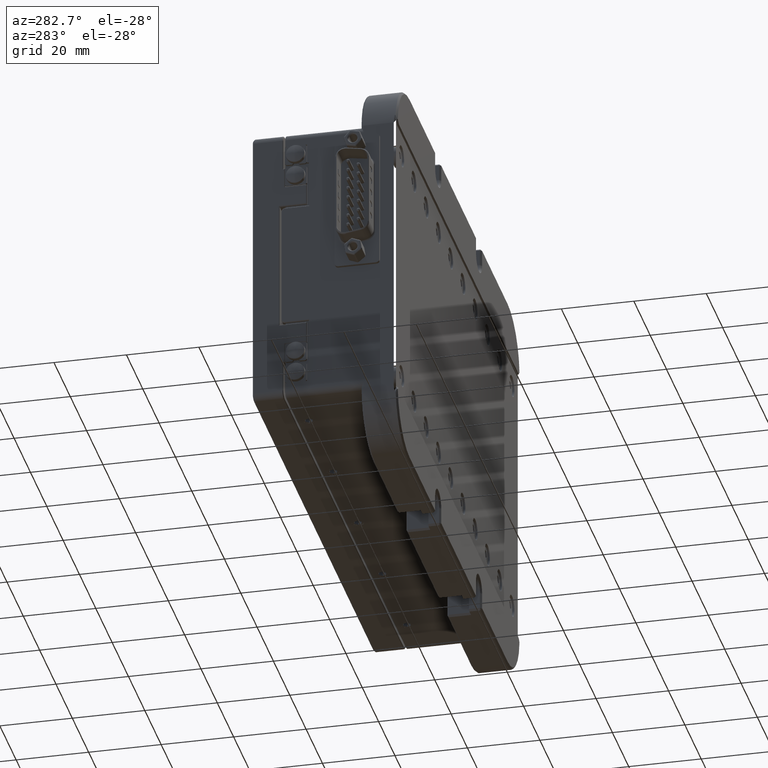
[diagram: clean part render]
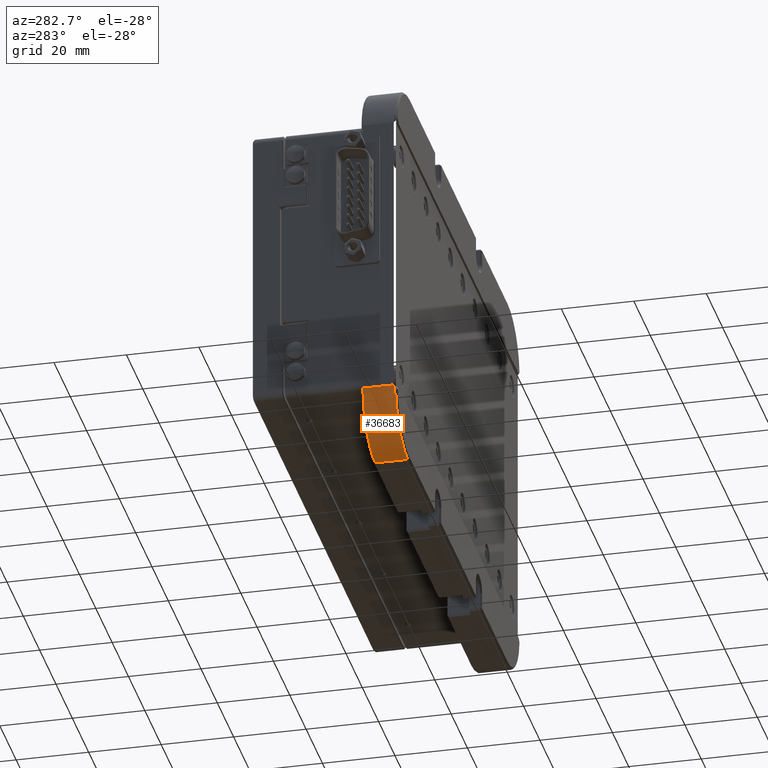
[diagram: same view with one face highlighted and labeled with its STEP entity id]
A machine part, auxiliary view. The second image highlights one B-rep face of the part: STEP entity #36683.
In plain terms, the highlighted cylindrical surface (partial cylindrical patch) has radius 15 mm, axis along (-0, 1, 0).
Its self-contained STEP definition (entity closure, byte-faithful):
#5221 = CARTESIAN_POINT ( 'NONE',  ( 145.5612698083624500, 0.9403555456845442700, 8.074061556571875200 ) ) ;
#5414 = EDGE_CURVE ( 'NONE', #62316, #48277, #13098, .T. ) ;
#5646 = CARTESIAN_POINT ( 'NONE',  ( 145.6802031478949900, 0.8214222061520279900, 7.310198352745447700 ) ) ;
#5943 = DIRECTION ( 'NONE',  ( -1.119176436114068600E-016, 1.000000000000000000, 1.224646799147353200E-016 ) ) ;
#8294 = CIRCLE ( 'NONE', #33526, 14.99999999999998400 ) ;
#10439 = DIRECTION ( 'NONE',  ( 0.0000000000000000000, -1.224646799147353700E-016, 1.000000000000000000 ) ) ;
#11075 = DIRECTION ( 'NONE',  ( 0.0000000000000000000, -1.156482317317872700E-016, 1.000000000000000000 ) ) ;
#11998 = LINE ( 'NONE', #57570, #21361 ) ;
#12529 = VERTEX_POINT ( 'NONE', #39782 ) ;
#13098 = LINE ( 'NONE', #58185, #16195 ) ;
#16195 = VECTOR ( 'NONE', #63368, 1000.000000000000000 ) ;
#16629 = DIRECTION ( 'NONE',  ( 1.119176436114068600E-016, -1.000000000000000000, -1.224646799147353200E-016 ) ) ;
#20284 = ORIENTED_EDGE ( 'NONE', *, *, #44982, .F. ) ;
#20672 = CARTESIAN_POINT ( 'NONE',  ( 145.5016253540470400, 0.9999999999999499300, 9.617890660437760500 ) ) ;
#21361 = VECTOR ( 'NONE', #62320, 1000.000000000000000 ) ;
#24674 = EDGE_LOOP ( 'NONE', ( #44126, #20284, #31292, #40821, #42316, #50631 ) ) ;
#29806 = DIRECTION ( 'NONE',  ( -1.119176436114068600E-016, 1.000000000000000000, 1.224646799147353200E-016 ) ) ;
#31292 = ORIENTED_EDGE ( 'NONE', *, *, #5414, .T. ) ;
#31494 = EDGE_CURVE ( 'NONE', #48277, #12529, #8294, .T. ) ;
#32709 = LINE ( 'NONE', #36224, #56023 ) ;
#32964 = EDGE_CURVE ( 'NONE', #36546, #35464, #47074, .T. ) ;
#33526 = AXIS2_PLACEMENT_3D ( 'NONE', #40013, #50637, #11075 ) ;
#34614 = CARTESIAN_POINT ( 'NONE',  ( 160.5016253540470600, -9.045515416270579200E-015, 9.617890660437764100 ) ) ;
#35464 = VERTEX_POINT ( 'NONE', #62536 ) ;
#35551 = CARTESIAN_POINT ( 'NONE',  ( 160.5016253540470600, 0.4999999999999553700, 9.617890660437764100 ) ) ;
#36224 = CARTESIAN_POINT ( 'NONE',  ( 160.5016253540470600, -7.208545217549550400E-015, -5.382109339562221700 ) ) ;
#36546 = VERTEX_POINT ( 'NONE', #63702 ) ;
#36683 = ADVANCED_FACE ( 'NONE', ( #42853 ), #42109, .T. ) ;
#39641 = AXIS2_PLACEMENT_3D ( 'NONE', #34614, #29806, #10439 ) ;
#39782 = CARTESIAN_POINT ( 'NONE',  ( 160.5016253540470600, 9.500000000000083500, -5.382109339562230600 ) ) ;
#39849 = CARTESIAN_POINT ( 'NONE',  ( 145.5016253540470400, 0.9999999999999328300, 8.844823953476234700 ) ) ;
#40013 = CARTESIAN_POINT ( 'NONE',  ( 160.5016253540470600, 9.500000000000085300, 9.617890660437765900 ) ) ;
#40821 = ORIENTED_EDGE ( 'NONE', *, *, #31494, .T. ) ;
#41212 = DIRECTION ( 'NONE',  ( 0.0000000000000000000, -1.228762462150239500E-016, 1.000000000000000000 ) ) ;
#42109 = CYLINDRICAL_SURFACE ( 'NONE', #39641, 14.99999999999998600 ) ;
#42316 = ORIENTED_EDGE ( 'NONE', *, *, #63542, .T. ) ;
#42853 = FACE_OUTER_BOUND ( 'NONE', #24674, .T. ) ;
#44126 = ORIENTED_EDGE ( 'NONE', *, *, #57024, .F. ) ;
#44982 = EDGE_CURVE ( 'NONE', #62316, #45488, #56070, .T. ) ;
#45488 = VERTEX_POINT ( 'NONE', #60323 ) ;
#47074 = CIRCLE ( 'NONE', #49417, 14.99999999999998600 ) ;
#48277 = VERTEX_POINT ( 'NONE', #56046 ) ;
#49263 = CARTESIAN_POINT ( 'NONE',  ( 145.5016253540470400, 0.9999999999999499300, 9.617890660437760500 ) ) ;
#49417 = AXIS2_PLACEMENT_3D ( 'NONE', #35551, #5943, #41212 ) ;
#50631 = ORIENTED_EDGE ( 'NONE', *, *, #32964, .T. ) ;
#50637 = DIRECTION ( 'NONE',  ( 1.119176436114068600E-016, -1.000000000000000000, -1.224646799147353200E-016 ) ) ;
#56023 = VECTOR ( 'NONE', #16629, 1000.000000000000000 ) ;
#56046 = CARTESIAN_POINT ( 'NONE',  ( 145.5016253540470400, 9.500000000000071100, 9.617890660437764100 ) ) ;
#56070 =( BOUNDED_CURVE ( )  B_SPLINE_CURVE ( 3, ( #20672, #39849, #5221, #5646 ),
 .UNSPECIFIED., .F., .F. ) 
 B_SPLINE_CURVE_WITH_KNOTS ( ( 4, 4 ),
 ( 3.682171723447897100E-016, 0.1544595984841847000 ),
 .UNSPECIFIED. ) 
 CURVE ( )  GEOMETRIC_REPRESENTATION_ITEM ( )  RATIONAL_B_SPLINE_CURVE ( ( 1.000000000000000000, 0.9980128406889831000, 0.9980128406889831000, 1.000000000000000000 ) ) 
 REPRESENTATION_ITEM ( '' )  );
#57024 = EDGE_CURVE ( 'NONE', #45488, #35464, #11998, .T. ) ;
#57570 = CARTESIAN_POINT ( 'NONE',  ( 145.6802031478949600, -1.042168326474966200E-014, 7.310198352745445000 ) ) ;
#58185 = CARTESIAN_POINT ( 'NONE',  ( 145.5016253540470600, -1.072428007044168000E-014, 9.617890660437760500 ) ) ;
#60323 = CARTESIAN_POINT ( 'NONE',  ( 145.6802031478949900, 0.8214222061520279900, 7.310198352745447700 ) ) ;
#62316 = VERTEX_POINT ( 'NONE', #49263 ) ;
#62320 = DIRECTION ( 'NONE',  ( 1.119176436114068600E-016, -1.000000000000000000, -1.224646799147353200E-016 ) ) ;
#62536 = CARTESIAN_POINT ( 'NONE',  ( 145.6802031478949600, 0.4999999999999707500, 7.310198352745447700 ) ) ;
#63368 = DIRECTION ( 'NONE',  ( -1.119176436114068600E-016, 1.000000000000000000, 1.224646799147353200E-016 ) ) ;
#63542 = EDGE_CURVE ( 'NONE', #12529, #36546, #32709, .T. ) ;
#63702 = CARTESIAN_POINT ( 'NONE',  ( 160.5016253540470600, 0.4999999999999572000, -5.382109339562228800 ) ) ;